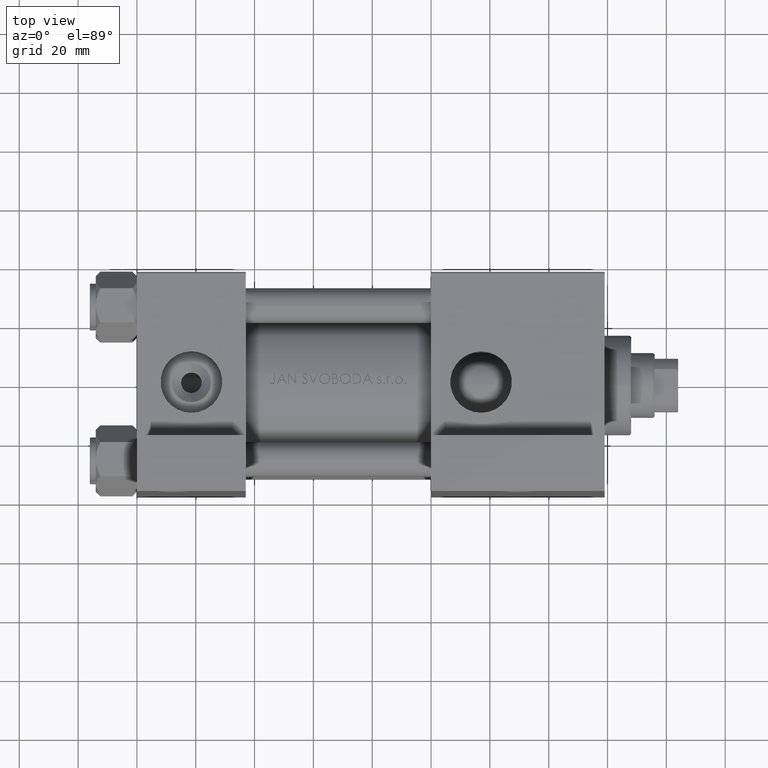
[diagram: clean part render]
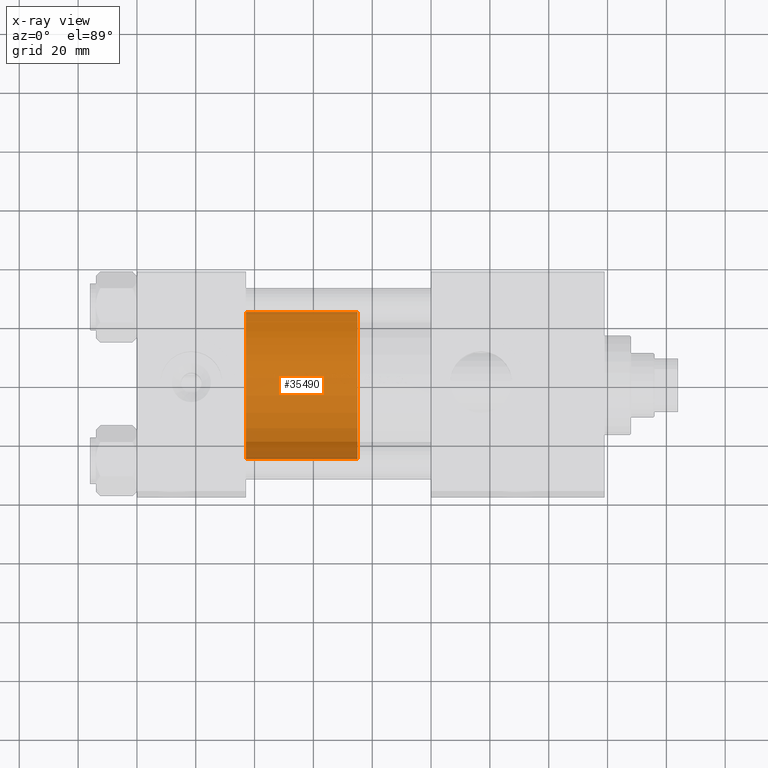
[diagram: x-ray — body ghosted, one internal face saturated and labeled with its STEP entity id]
A machine part, top view, then the same camera in x-ray: the body is ghosted and one INTERNAL B-rep face — a face not visible from any outside direction — is saturated and labeled: STEP entity #35490.
In plain terms, the highlighted cylindrical surface (partial cylindrical patch) has radius 25 mm, axis along (-1, 0, 0).
Its self-contained STEP definition (entity closure, byte-faithful):
#1586 = EDGE_LOOP ( 'NONE', ( #45194, #11710, #41323, #14541 ) ) ;
#2554 = CARTESIAN_POINT ( 'NONE',  ( 0.000000000000000000, 0.000000000000000000, 38.00000000000000000 ) ) ;
#2934 = CYLINDRICAL_SURFACE ( 'NONE', #8300, 25.00000000000000000 ) ;
#3023 = LINE ( 'NONE', #10973, #35422 ) ;
#4371 = VERTEX_POINT ( 'NONE', #19775 ) ;
#5803 = EDGE_CURVE ( 'NONE', #4371, #14495, #3023, .T. ) ;
#5924 = CARTESIAN_POINT ( 'NONE',  ( 0.000000000000000000, 0.000000000000000000, 38.00000000000000000 ) ) ;
#6528 = VERTEX_POINT ( 'NONE', #12025 ) ;
#7364 = LINE ( 'NONE', #27266, #35331 ) ;
#8123 = CARTESIAN_POINT ( 'NONE',  ( -25.00000000000000000, 0.000000000000000000, 0.000000000000000000 ) ) ;
#8300 = AXIS2_PLACEMENT_3D ( 'NONE', #5924, #36313, #13395 ) ;
#8343 = DIRECTION ( 'NONE',  ( -0.000000000000000000, -0.000000000000000000, -1.000000000000000000 ) ) ;
#9269 = CARTESIAN_POINT ( 'NONE',  ( 0.000000000000000000, 0.000000000000000000, 0.000000000000000000 ) ) ;
#9277 = AXIS2_PLACEMENT_3D ( 'NONE', #9269, #12983, #9758 ) ;
#9758 = DIRECTION ( 'NONE',  ( 1.000000000000000000, 0.000000000000000000, 0.000000000000000000 ) ) ;
#10877 = CIRCLE ( 'NONE', #9277, 25.00000000000000000 ) ;
#10973 = CARTESIAN_POINT ( 'NONE',  ( -25.00000000000000000, 0.000000000000000000, 38.00000000000000000 ) ) ;
#11710 = ORIENTED_EDGE ( 'NONE', *, *, #36289, .T. ) ;
#12025 = CARTESIAN_POINT ( 'NONE',  ( 25.00000000000000000, 3.061616997868383043E-15, 0.000000000000000000 ) ) ;
#12554 = EDGE_CURVE ( 'NONE', #6528, #14495, #10877, .T. ) ;
#12983 = DIRECTION ( 'NONE',  ( 0.000000000000000000, 0.000000000000000000, 1.000000000000000000 ) ) ;
#13395 = DIRECTION ( 'NONE',  ( -1.000000000000000000, 0.000000000000000000, 0.000000000000000000 ) ) ;
#14495 = VERTEX_POINT ( 'NONE', #8123 ) ;
#14541 = ORIENTED_EDGE ( 'NONE', *, *, #5803, .F. ) ;
#15195 = DIRECTION ( 'NONE',  ( -0.000000000000000000, -0.000000000000000000, -1.000000000000000000 ) ) ;
#19775 = CARTESIAN_POINT ( 'NONE',  ( -25.00000000000000000, 0.000000000000000000, 38.00000000000000000 ) ) ;
#20675 = CARTESIAN_POINT ( 'NONE',  ( 25.00000000000000000, 3.061616997868383043E-15, 38.00000000000000000 ) ) ;
#21244 = DIRECTION ( 'NONE',  ( 0.000000000000000000, 0.000000000000000000, 1.000000000000000000 ) ) ;
#27266 = CARTESIAN_POINT ( 'NONE',  ( 25.00000000000000000, 3.061616997868383043E-15, 38.00000000000000000 ) ) ;
#29454 = DIRECTION ( 'NONE',  ( 1.000000000000000000, 0.000000000000000000, 0.000000000000000000 ) ) ;
#29954 = AXIS2_PLACEMENT_3D ( 'NONE', #2554, #21244, #29454 ) ;
#34741 = CIRCLE ( 'NONE', #29954, 25.00000000000000000 ) ;
#35331 = VECTOR ( 'NONE', #8343, 1000.000000000000000 ) ;
#35422 = VECTOR ( 'NONE', #15195, 1000.000000000000000 ) ;
#35490 = ADVANCED_FACE ( 'NONE', ( #40783 ), #2934, .T. ) ;
#36289 = EDGE_CURVE ( 'NONE', #40273, #6528, #7364, .T. ) ;
#36313 = DIRECTION ( 'NONE',  ( -0.000000000000000000, -0.000000000000000000, -1.000000000000000000 ) ) ;
#40273 = VERTEX_POINT ( 'NONE', #20675 ) ;
#40783 = FACE_OUTER_BOUND ( 'NONE', #1586, .T. ) ;
#41323 = ORIENTED_EDGE ( 'NONE', *, *, #12554, .T. ) ;
#41540 = EDGE_CURVE ( 'NONE', #40273, #4371, #34741, .T. ) ;
#45194 = ORIENTED_EDGE ( 'NONE', *, *, #41540, .F. ) ;